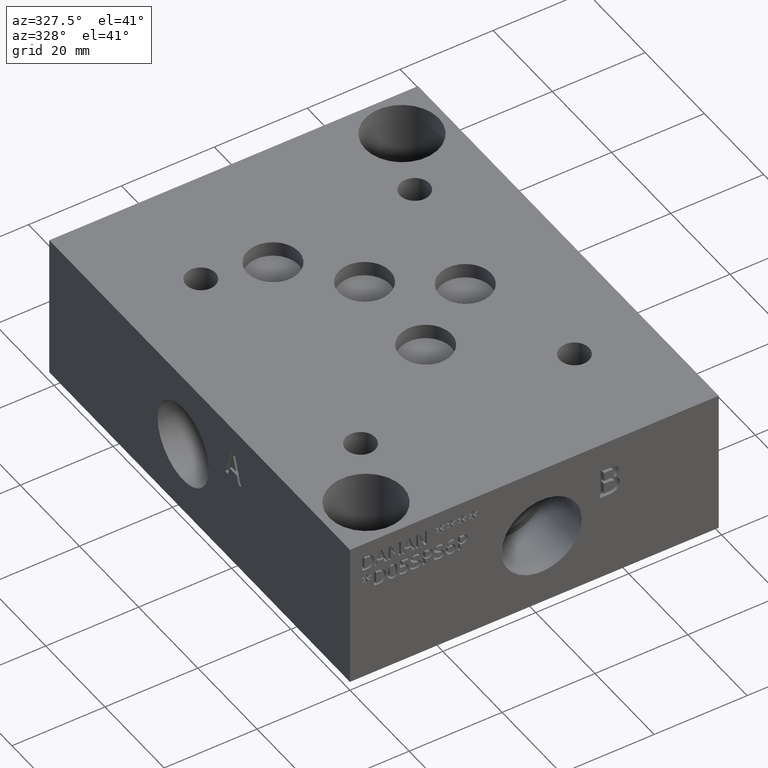
[diagram: clean part render]
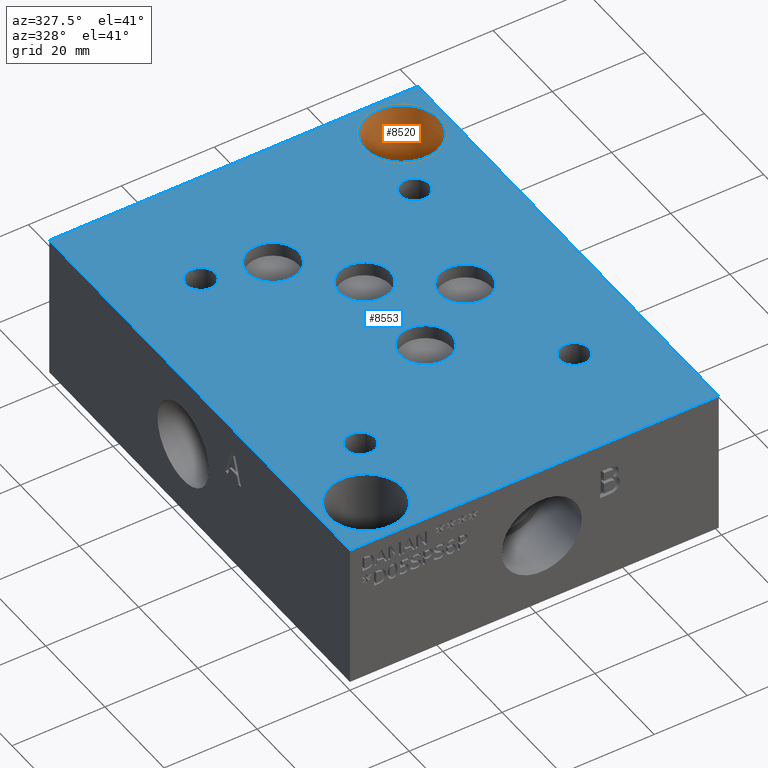
[diagram: same view with the hole feature highlighted: cylindrical wall and planar end face, labeled with their STEP entity ids]
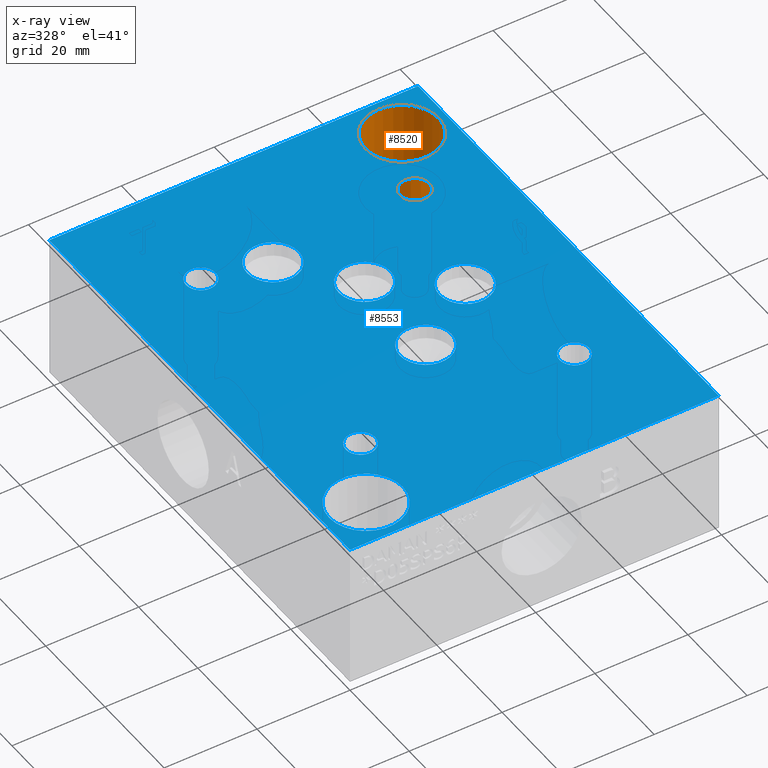
[diagram: x-ray of the same camera — body ghosted, the hole faces saturated]
A machine part, auxiliary view. The highlighted faces form one hole feature of diameter 15.875 mm: the cylindrical wall (entity #8520, orange) and its adjacent planar end face (entity #8553, blue) — they share a circular edge in the B-rep.
The next image is the same camera in x-ray (body ghosted, the hole faces saturated) — the bore reads through the body.
Wall:
#22=CYLINDRICAL_SURFACE('',#8868,7.9375);
#78=CIRCLE('',#8865,7.9375);
#79=CIRCLE('',#8866,7.9375);
#81=CIRCLE('',#8869,7.9375);
#82=CIRCLE('',#8870,7.9375);
#859=FACE_OUTER_BOUND('',#1333,.T.);
#1333=EDGE_LOOP('',(#7426,#7427,#7428,#7429,#7430,#7431));
#2190=LINE('',#14486,#3019);
#3019=VECTOR('',#10365,7.9375);
#4039=VERTEX_POINT('',#14475);
#4040=VERTEX_POINT('',#14476);
#4042=VERTEX_POINT('',#14482);
#4043=VERTEX_POINT('',#14483);
#5194=EDGE_CURVE('',#4039,#4040,#78,.T.);
#5195=EDGE_CURVE('',#4040,#4039,#79,.T.);
#5197=EDGE_CURVE('',#4042,#4043,#81,.T.);
#5198=EDGE_CURVE('',#4043,#4042,#82,.T.);
#5199=EDGE_CURVE('',#4043,#4040,#2190,.T.);
#7426=ORIENTED_EDGE('',*,*,#5197,.F.);
#7427=ORIENTED_EDGE('',*,*,#5198,.F.);
#7428=ORIENTED_EDGE('',*,*,#5199,.T.);
#7429=ORIENTED_EDGE('',*,*,#5194,.F.);
#7430=ORIENTED_EDGE('',*,*,#5195,.F.);
#7431=ORIENTED_EDGE('',*,*,#5199,.F.);
#8520=ADVANCED_FACE('',(#859),#22,.F.);
#8865=AXIS2_PLACEMENT_3D('',#14477,#10353,#10354);
#8866=AXIS2_PLACEMENT_3D('',#14478,#10355,#10356);
#8868=AXIS2_PLACEMENT_3D('',#14481,#10359,#10360);
#8869=AXIS2_PLACEMENT_3D('',#14484,#10361,#10362);
#8870=AXIS2_PLACEMENT_3D('',#14485,#10363,#10364);
#10353=DIRECTION('center_axis',(0.,0.,1.));
#10354=DIRECTION('ref_axis',(1.,0.,0.));
#10355=DIRECTION('center_axis',(0.,0.,1.));
#10356=DIRECTION('ref_axis',(1.,0.,0.));
#10359=DIRECTION('center_axis',(0.,0.,1.));
#10360=DIRECTION('ref_axis',(1.,0.,0.));
#10361=DIRECTION('center_axis',(0.,0.,-1.));
#10362=DIRECTION('ref_axis',(1.,0.,0.));
#10363=DIRECTION('center_axis',(0.,0.,-1.));
#10364=DIRECTION('ref_axis',(1.,0.,0.));
#10365=DIRECTION('',(0.,0.,-1.));
#14475=CARTESIAN_POINT('',(77.7875,92.075,17.526));
#14476=CARTESIAN_POINT('',(61.9125,92.075,17.526));
#14477=CARTESIAN_POINT('Origin',(69.85,92.075,17.526));
#14478=CARTESIAN_POINT('Origin',(69.85,92.075,17.526));
#14481=CARTESIAN_POINT('Origin',(69.85,92.075,24.638));
#14482=CARTESIAN_POINT('',(77.7875,92.075,31.75));
#14483=CARTESIAN_POINT('',(61.9125,92.075,31.75));
#14484=CARTESIAN_POINT('Origin',(69.85,92.075,31.75));
#14485=CARTESIAN_POINT('Origin',(69.85,92.075,31.75));
#14486=CARTESIAN_POINT('',(61.9125,92.075,24.638));
End face:
#81=CIRCLE('',#8869,7.9375);
#82=CIRCLE('',#8870,7.9375);
#87=CIRCLE('',#8878,7.9375);
#88=CIRCLE('',#8879,7.9375);
#92=CIRCLE('',#8886,5.55625);
#93=CIRCLE('',#8887,5.55625);
#96=CIRCLE('',#8892,5.55625);
#97=CIRCLE('',#8893,5.55625);
#100=CIRCLE('',#8898,5.5626);
#101=CIRCLE('',#8899,5.5626);
#104=CIRCLE('',#8904,5.5626);
#105=CIRCLE('',#8905,5.5626);
#111=CIRCLE('',#8914,3.175);
#112=CIRCLE('',#8915,3.175);
#118=CIRCLE('',#8925,3.175);
#119=CIRCLE('',#8926,3.175);
#125=CIRCLE('',#8936,3.175);
#126=CIRCLE('',#8937,3.175);
#132=CIRCLE('',#8947,3.175);
#133=CIRCLE('',#8948,3.175);
#182=FACE_BOUND('',#1374,.T.);
#183=FACE_BOUND('',#1375,.T.);
#184=FACE_BOUND('',#1376,.T.);
#185=FACE_BOUND('',#1377,.T.);
#186=FACE_BOUND('',#1378,.T.);
#187=FACE_BOUND('',#1379,.T.);
#188=FACE_BOUND('',#1380,.T.);
#189=FACE_BOUND('',#1381,.T.);
#190=FACE_BOUND('',#1382,.T.);
#191=FACE_BOUND('',#1383,.T.);
#459=PLANE('',#8954);
#892=FACE_OUTER_BOUND('',#1373,.T.);
#1373=EDGE_LOOP('',(#7592,#7593,#7594,#7595));
#1374=EDGE_LOOP('',(#7596,#7597));
#1375=EDGE_LOOP('',(#7598,#7599));
#1376=EDGE_LOOP('',(#7600,#7601));
#1377=EDGE_LOOP('',(#7602,#7603));
#1378=EDGE_LOOP('',(#7604,#7605));
#1379=EDGE_LOOP('',(#7606,#7607));
#1380=EDGE_LOOP('',(#7608,#7609));
#1381=EDGE_LOOP('',(#7610,#7611));
#1382=EDGE_LOOP('',(#7612,#7613));
#1383=EDGE_LOOP('',(#7614,#7615));
#1660=LINE('',#12820,#2489);
#2077=LINE('',#13976,#2906);
#2136=LINE('',#14101,#2965);
#2215=LINE('',#14651,#3044);
#2489=VECTOR('',#9365,10.);
#2906=VECTOR('',#10084,10.);
#2965=VECTOR('',#10191,10.);
#3044=VECTOR('',#10552,10.);
#3621=VERTEX_POINT('',#12817);
#3622=VERTEX_POINT('',#12819);
#3930=VERTEX_POINT('',#13974);
#3972=VERTEX_POINT('',#14100);
#4042=VERTEX_POINT('',#14482);
#4043=VERTEX_POINT('',#14483);
#4048=VERTEX_POINT('',#14499);
#4049=VERTEX_POINT('',#14500);
#4054=VERTEX_POINT('',#14516);
#4055=VERTEX_POINT('',#14517);
#4059=VERTEX_POINT('',#14529);
#4060=VERTEX_POINT('',#14530);
#4064=VERTEX_POINT('',#14542);
#4065=VERTEX_POINT('',#14543);
#4069=VERTEX_POINT('',#14555);
#4070=VERTEX_POINT('',#14556);
#4077=VERTEX_POINT('',#14575);
#4078=VERTEX_POINT('',#14576);
#4085=VERTEX_POINT('',#14597);
#4086=VERTEX_POINT('',#14598);
#4093=VERTEX_POINT('',#14619);
#4094=VERTEX_POINT('',#14620);
#4101=VERTEX_POINT('',#14641);
#4102=VERTEX_POINT('',#14642);
#4576=EDGE_CURVE('',#3622,#3621,#1660,.T.);
#5033=EDGE_CURVE('',#3621,#3930,#2077,.T.);
#5094=EDGE_CURVE('',#3972,#3622,#2136,.T.);
#5197=EDGE_CURVE('',#4042,#4043,#81,.T.);
#5198=EDGE_CURVE('',#4043,#4042,#82,.T.);
#5205=EDGE_CURVE('',#4048,#4049,#87,.T.);
#5206=EDGE_CURVE('',#4049,#4048,#88,.T.);
#5213=EDGE_CURVE('',#4054,#4055,#92,.T.);
#5214=EDGE_CURVE('',#4055,#4054,#93,.T.);
#5219=EDGE_CURVE('',#4059,#4060,#96,.T.);
#5220=EDGE_CURVE('',#4060,#4059,#97,.T.);
#5225=EDGE_CURVE('',#4064,#4065,#100,.T.);
#5226=EDGE_CURVE('',#4065,#4064,#101,.T.);
#5231=EDGE_CURVE('',#4069,#4070,#104,.T.);
#5232=EDGE_CURVE('',#4070,#4069,#105,.T.);
#5240=EDGE_CURVE('',#4077,#4078,#111,.T.);
#5241=EDGE_CURVE('',#4078,#4077,#112,.T.);
#5250=EDGE_CURVE('',#4085,#4086,#118,.T.);
#5251=EDGE_CURVE('',#4086,#4085,#119,.T.);
#5260=EDGE_CURVE('',#4093,#4094,#125,.T.);
#5261=EDGE_CURVE('',#4094,#4093,#126,.T.);
#5270=EDGE_CURVE('',#4101,#4102,#132,.T.);
#5271=EDGE_CURVE('',#4102,#4101,#133,.T.);
#5275=EDGE_CURVE('',#3930,#3972,#2215,.T.);
#7592=ORIENTED_EDGE('',*,*,#4576,.T.);
#7593=ORIENTED_EDGE('',*,*,#5033,.T.);
#7594=ORIENTED_EDGE('',*,*,#5275,.T.);
#7595=ORIENTED_EDGE('',*,*,#5094,.T.);
#7596=ORIENTED_EDGE('',*,*,#5197,.T.);
#7597=ORIENTED_EDGE('',*,*,#5198,.T.);
#7598=ORIENTED_EDGE('',*,*,#5205,.T.);
#7599=ORIENTED_EDGE('',*,*,#5206,.T.);
#7600=ORIENTED_EDGE('',*,*,#5213,.T.);
#7601=ORIENTED_EDGE('',*,*,#5214,.T.);
#7602=ORIENTED_EDGE('',*,*,#5219,.T.);
#7603=ORIENTED_EDGE('',*,*,#5220,.T.);
#7604=ORIENTED_EDGE('',*,*,#5225,.T.);
#7605=ORIENTED_EDGE('',*,*,#5226,.T.);
#7606=ORIENTED_EDGE('',*,*,#5231,.T.);
#7607=ORIENTED_EDGE('',*,*,#5232,.T.);
#7608=ORIENTED_EDGE('',*,*,#5240,.T.);
#7609=ORIENTED_EDGE('',*,*,#5241,.T.);
#7610=ORIENTED_EDGE('',*,*,#5250,.T.);
#7611=ORIENTED_EDGE('',*,*,#5251,.T.);
#7612=ORIENTED_EDGE('',*,*,#5260,.T.);
#7613=ORIENTED_EDGE('',*,*,#5261,.T.);
#7614=ORIENTED_EDGE('',*,*,#5270,.T.);
#7615=ORIENTED_EDGE('',*,*,#5271,.T.);
#8553=ADVANCED_FACE('',(#892,#182,#183,#184,#185,#186,#187,#188,#189,#190,
#191),#459,.T.);
#8869=AXIS2_PLACEMENT_3D('',#14484,#10361,#10362);
#8870=AXIS2_PLACEMENT_3D('',#14485,#10363,#10364);
#8878=AXIS2_PLACEMENT_3D('',#14501,#10381,#10382);
#8879=AXIS2_PLACEMENT_3D('',#14502,#10383,#10384);
#8886=AXIS2_PLACEMENT_3D('',#14518,#10400,#10401);
#8887=AXIS2_PLACEMENT_3D('',#14519,#10402,#10403);
#8892=AXIS2_PLACEMENT_3D('',#14531,#10414,#10415);
#8893=AXIS2_PLACEMENT_3D('',#14532,#10416,#10417);
#8898=AXIS2_PLACEMENT_3D('',#14544,#10428,#10429);
#8899=AXIS2_PLACEMENT_3D('',#14545,#10430,#10431);
#8904=AXIS2_PLACEMENT_3D('',#14557,#10442,#10443);
#8905=AXIS2_PLACEMENT_3D('',#14558,#10444,#10445);
#8914=AXIS2_PLACEMENT_3D('',#14577,#10464,#10465);
#8915=AXIS2_PLACEMENT_3D('',#14578,#10466,#10467);
#8925=AXIS2_PLACEMENT_3D('',#14599,#10489,#10490);
#8926=AXIS2_PLACEMENT_3D('',#14600,#10491,#10492);
#8936=AXIS2_PLACEMENT_3D('',#14621,#10514,#10515);
#8937=AXIS2_PLACEMENT_3D('',#14622,#10516,#10517);
#8947=AXIS2_PLACEMENT_3D('',#14643,#10539,#10540);
#8948=AXIS2_PLACEMENT_3D('',#14644,#10541,#10542);
#8954=AXIS2_PLACEMENT_3D('',#14654,#10557,#10558);
#9365=DIRECTION('',(1.,0.,0.));
#10084=DIRECTION('',(0.,1.,0.));
#10191=DIRECTION('',(0.,-1.,0.));
#10361=DIRECTION('center_axis',(0.,0.,-1.));
#10362=DIRECTION('ref_axis',(1.,0.,0.));
#10363=DIRECTION('center_axis',(0.,0.,-1.));
#10364=DIRECTION('ref_axis',(1.,0.,0.));
#10381=DIRECTION('center_axis',(0.,0.,-1.));
#10382=DIRECTION('ref_axis',(1.,0.,0.));
#10383=DIRECTION('center_axis',(0.,0.,-1.));
#10384=DIRECTION('ref_axis',(1.,0.,0.));
#10400=DIRECTION('center_axis',(0.,0.,-1.));
#10401=DIRECTION('ref_axis',(1.,0.,0.));
#10402=DIRECTION('center_axis',(0.,0.,-1.));
#10403=DIRECTION('ref_axis',(1.,0.,0.));
#10414=DIRECTION('center_axis',(0.,0.,-1.));
#10415=DIRECTION('ref_axis',(1.,0.,0.));
#10416=DIRECTION('center_axis',(0.,0.,-1.));
#10417=DIRECTION('ref_axis',(1.,0.,0.));
#10428=DIRECTION('center_axis',(0.,0.,-1.));
#10429=DIRECTION('ref_axis',(1.,0.,0.));
#10430=DIRECTION('center_axis',(0.,0.,-1.));
#10431=DIRECTION('ref_axis',(1.,0.,0.));
#10442=DIRECTION('center_axis',(0.,0.,-1.));
#10443=DIRECTION('ref_axis',(1.,0.,0.));
#10444=DIRECTION('center_axis',(0.,0.,-1.));
#10445=DIRECTION('ref_axis',(1.,0.,0.));
#10464=DIRECTION('center_axis',(0.,0.,-1.));
#10465=DIRECTION('ref_axis',(1.,0.,0.));
#10466=DIRECTION('center_axis',(0.,0.,-1.));
#10467=DIRECTION('ref_axis',(1.,0.,0.));
#10489=DIRECTION('center_axis',(0.,0.,-1.));
#10490=DIRECTION('ref_axis',(1.,0.,0.));
#10491=DIRECTION('center_axis',(0.,0.,-1.));
#10492=DIRECTION('ref_axis',(1.,0.,0.));
#10514=DIRECTION('center_axis',(0.,0.,-1.));
#10515=DIRECTION('ref_axis',(1.,0.,0.));
#10516=DIRECTION('center_axis',(0.,0.,-1.));
#10517=DIRECTION('ref_axis',(1.,0.,0.));
#10539=DIRECTION('center_axis',(0.,0.,-1.));
#10540=DIRECTION('ref_axis',(1.,0.,0.));
#10541=DIRECTION('center_axis',(0.,0.,-1.));
#10542=DIRECTION('ref_axis',(1.,0.,0.));
#10552=DIRECTION('',(-1.,0.,0.));
#10557=DIRECTION('center_axis',(0.,0.,1.));
#10558=DIRECTION('ref_axis',(1.,0.,0.));
#12817=CARTESIAN_POINT('',(79.375,0.,31.75));
#12819=CARTESIAN_POINT('',(0.,0.,31.75));
#12820=CARTESIAN_POINT('',(0.,0.,31.75));
#13974=CARTESIAN_POINT('',(79.375,101.6,31.75));
#13976=CARTESIAN_POINT('',(79.375,0.,31.75));
#14100=CARTESIAN_POINT('',(0.,101.6,31.75));
#14101=CARTESIAN_POINT('',(0.,101.6,31.75));
#14482=CARTESIAN_POINT('',(77.7875,92.075,31.75));
#14483=CARTESIAN_POINT('',(61.9125,92.075,31.75));
#14484=CARTESIAN_POINT('Origin',(69.85,92.075,31.75));
#14485=CARTESIAN_POINT('Origin',(69.85,92.075,31.75));
#14499=CARTESIAN_POINT('',(17.4625,9.525,31.75));
#14500=CARTESIAN_POINT('',(1.5875,9.525,31.75));
#14501=CARTESIAN_POINT('Origin',(9.525,9.525,31.75));
#14502=CARTESIAN_POINT('Origin',(9.525,9.525,31.75));
#14516=CARTESIAN_POINT('',(47.63135,61.11748,31.75));
#14517=CARTESIAN_POINT('',(36.51885,61.11748,31.75));
#14518=CARTESIAN_POINT('Origin',(42.0751,61.11748,31.75));
#14519=CARTESIAN_POINT('Origin',(42.0751,61.11748,31.75));
#14529=CARTESIAN_POINT('',(47.63643,40.48252,31.75));
#14530=CARTESIAN_POINT('',(36.52393,40.48252,31.75));
#14531=CARTESIAN_POINT('Origin',(42.08018,40.48252,31.75));
#14532=CARTESIAN_POINT('Origin',(42.08018,40.48252,31.75));
#14542=CARTESIAN_POINT('',(62.738,50.8,31.75));
#14543=CARTESIAN_POINT('',(51.6128,50.8,31.75));
#14544=CARTESIAN_POINT('Origin',(57.1754,50.8,31.75));
#14545=CARTESIAN_POINT('Origin',(57.1754,50.8,31.75));
#14555=CARTESIAN_POINT('',(36.5252,74.6252,31.75));
#14556=CARTESIAN_POINT('',(25.4,74.6252,31.75));
#14557=CARTESIAN_POINT('Origin',(30.9626,74.6252,31.75));
#14558=CARTESIAN_POINT('Origin',(30.9626,74.6252,31.75));
#14575=CARTESIAN_POINT('',(66.675,23.8379,31.75));
#14576=CARTESIAN_POINT('',(60.325,23.8379,31.75));
#14577=CARTESIAN_POINT('Origin',(63.5,23.8379,31.75));
#14578=CARTESIAN_POINT('Origin',(63.5,23.8379,31.75));
#14597=CARTESIAN_POINT('',(20.6248,77.8002,31.75));
#14598=CARTESIAN_POINT('',(14.2748,77.8002,31.75));
#14599=CARTESIAN_POINT('Origin',(17.4498,77.8002,31.75));
#14600=CARTESIAN_POINT('Origin',(17.4498,77.8002,31.75));
#14619=CARTESIAN_POINT('',(66.675,77.8002,31.75));
#14620=CARTESIAN_POINT('',(60.325,77.8002,31.75));
#14621=CARTESIAN_POINT('Origin',(63.5,77.8002,31.75));
#14622=CARTESIAN_POINT('Origin',(63.5,77.8002,31.75));
#14641=CARTESIAN_POINT('',(20.6248,23.8252,31.75));
#14642=CARTESIAN_POINT('',(14.2748,23.8252,31.75));
#14643=CARTESIAN_POINT('Origin',(17.4498,23.8252,31.75));
#14644=CARTESIAN_POINT('Origin',(17.4498,23.8252,31.75));
#14651=CARTESIAN_POINT('',(79.375,101.6,31.75));
#14654=CARTESIAN_POINT('Origin',(39.6875,50.8,31.75));